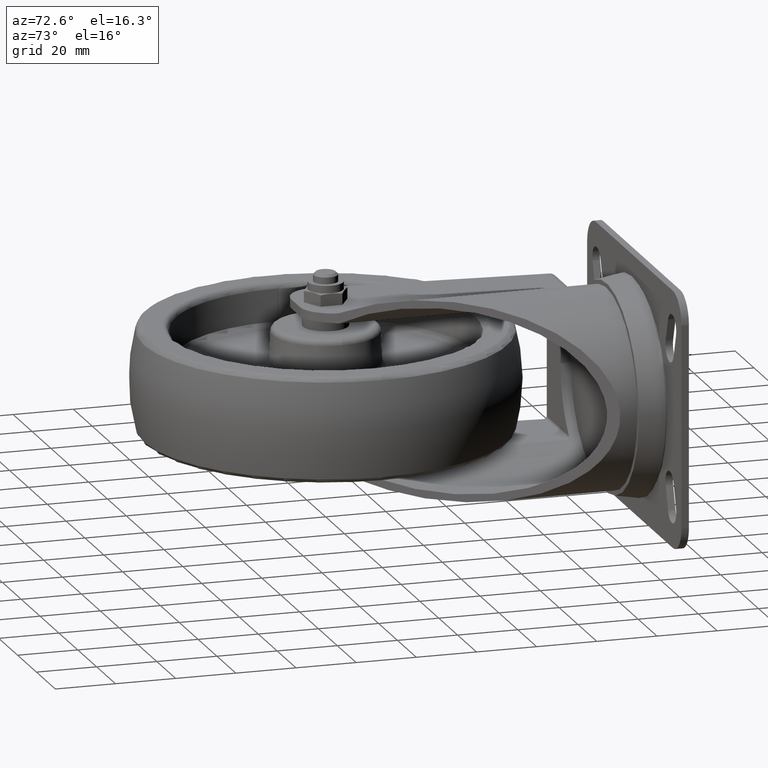
[diagram: clean part render]
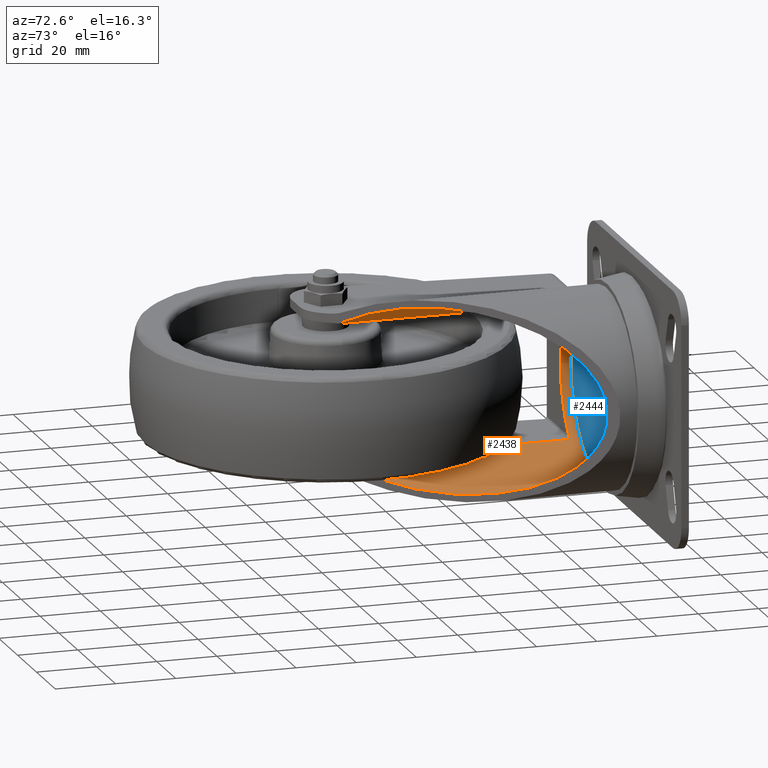
[diagram: same view with the hole feature highlighted: cylindrical wall and planar end face, labeled with their STEP entity ids]
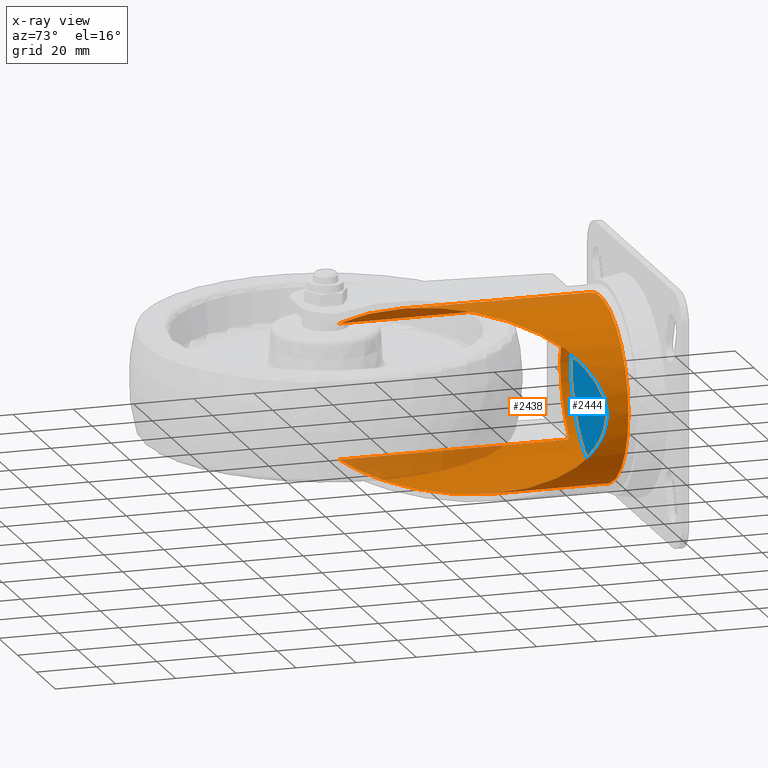
[diagram: x-ray of the same camera — body ghosted, the hole faces saturated]
A machine part, auxiliary view. The highlighted faces form one hole feature of diameter 61 mm: the cylindrical wall (entity #2438, orange) and its adjacent planar end face (entity #2444, blue) — they share a circular edge in the B-rep.
The next image is the same camera in x-ray (body ghosted, the hole faces saturated) — the bore reads through the body.
Wall:
#108=B_SPLINE_CURVE_WITH_KNOTS('',3,(#4002,#4003,#4004,#4005,#4006,#4007,
#4008,#4009,#4010,#4011,#4012,#4013),.UNSPECIFIED.,.F.,.F.,(4,2,2,2,2,4),
(0.180733820545579,0.236035838133543,0.291337855721506,0.328771485534597,
0.347488300441143,0.366205115347688),.UNSPECIFIED.);
#109=B_SPLINE_CURVE_WITH_KNOTS('',3,(#4031,#4032,#4033,#4034,#4035,#4036,
#4037,#4038,#4039,#4040,#4041,#4042),.UNSPECIFIED.,.F.,.F.,(4,2,2,2,2,4),
(0.,0.0187168149065458,0.0374336298130916,0.0748672596261831,0.130169277214146,
0.18547129480211),.UNSPECIFIED.);
#119=ELLIPSE('',#2676,53.2523324423824,30.5);
#130=CYLINDRICAL_SURFACE('',#2674,30.5);
#221=FACE_OUTER_BOUND('',#373,.T.);
#373=EDGE_LOOP('',(#1695,#1696,#1697,#1698,#1699,#1700,#1701,#1702,#1703,
#1704));
#531=CIRCLE('',#2614,30.5);
#532=CIRCLE('',#2615,30.5);
#572=CIRCLE('',#2675,30.5);
#686=LINE('',#3690,#815);
#703=LINE('',#4017,#832);
#720=LINE('',#4151,#849);
#815=VECTOR('',#2922,76.70179871917);
#832=VECTOR('',#2989,76.70179871917);
#849=VECTOR('',#3140,30.5);
#945=VERTEX_POINT('',#3678);
#950=VERTEX_POINT('',#3688);
#981=VERTEX_POINT('',#3999);
#982=VERTEX_POINT('',#4001);
#983=VERTEX_POINT('',#4016);
#989=VERTEX_POINT('',#4030);
#990=VERTEX_POINT('',#4046);
#1021=VERTEX_POINT('',#4149);
#1173=EDGE_CURVE('',#945,#950,#686,.T.);
#1214=EDGE_CURVE('',#981,#982,#108,.T.);
#1216=EDGE_CURVE('',#983,#982,#703,.T.);
#1223=EDGE_CURVE('',#945,#989,#109,.T.);
#1226=EDGE_CURVE('',#990,#989,#531,.T.);
#1227=EDGE_CURVE('',#981,#990,#532,.T.);
#1278=EDGE_CURVE('',#1021,#1021,#572,.T.);
#1279=EDGE_CURVE('',#1021,#990,#720,.T.);
#1280=EDGE_CURVE('',#983,#950,#119,.T.);
#1695=ORIENTED_EDGE('',*,*,#1278,.T.);
#1696=ORIENTED_EDGE('',*,*,#1279,.T.);
#1697=ORIENTED_EDGE('',*,*,#1226,.T.);
#1698=ORIENTED_EDGE('',*,*,#1223,.F.);
#1699=ORIENTED_EDGE('',*,*,#1173,.T.);
#1700=ORIENTED_EDGE('',*,*,#1280,.F.);
#1701=ORIENTED_EDGE('',*,*,#1216,.T.);
#1702=ORIENTED_EDGE('',*,*,#1214,.F.);
#1703=ORIENTED_EDGE('',*,*,#1227,.T.);
#1704=ORIENTED_EDGE('',*,*,#1279,.F.);
#2438=ADVANCED_FACE('',(#221),#130,.F.);
#2614=AXIS2_PLACEMENT_3D('',#4047,#3005,#3006);
#2615=AXIS2_PLACEMENT_3D('',#4048,#3007,#3008);
#2674=AXIS2_PLACEMENT_3D('',#4148,#3136,#3137);
#2675=AXIS2_PLACEMENT_3D('',#4150,#3138,#3139);
#2676=AXIS2_PLACEMENT_3D('',#4152,#3141,#3142);
#2922=DIRECTION('',(0.,-1.,0.));
#2989=DIRECTION('',(0.,1.,0.));
#3005=DIRECTION('center_axis',(0.,-1.,0.));
#3006=DIRECTION('ref_axis',(1.,0.,0.));
#3007=DIRECTION('center_axis',(0.,-1.,0.));
#3008=DIRECTION('ref_axis',(1.,0.,0.));
#3136=DIRECTION('center_axis',(0.,-1.,0.));
#3137=DIRECTION('ref_axis',(1.,0.,0.));
#3138=DIRECTION('center_axis',(0.,1.,0.));
#3139=DIRECTION('ref_axis',(1.,0.,0.));
#3140=DIRECTION('',(0.,-1.,0.));
#3141=DIRECTION('center_axis',(-0.819733687646226,0.572744865832876,0.));
#3142=DIRECTION('ref_axis',(0.572744865832876,0.819733687646226,-1.4027740036362E-16));
#3678=CARTESIAN_POINT('',(16.408739718026,75.,-22.5));
#3688=CARTESIAN_POINT('',(16.408739718026,-0.701798719170014,-22.5));
#3690=CARTESIAN_POINT('',(16.408739718026,76.,-22.5));
#3999=CARTESIAN_POINT('',(15.3666923472161,76.,21.5));
#4001=CARTESIAN_POINT('',(16.408739718026,75.,22.5));
#4002=CARTESIAN_POINT('Ctrl Pts',(15.3666923472161,76.,21.5));
#4003=CARTESIAN_POINT('Ctrl Pts',(15.4966369787069,76.,21.630750334459));
#4004=CARTESIAN_POINT('Ctrl Pts',(15.6386214325421,75.973229191605,21.7710172906661));
#4005=CARTESIAN_POINT('Ctrl Pts',(15.9099438789387,75.8576224835226,22.0339560900631));
#4006=CARTESIAN_POINT('Ctrl Pts',(16.0393188517808,75.7691111949694,22.1567323842964));
#4007=CARTESIAN_POINT('Ctrl Pts',(16.2164024202545,75.5776431042063,22.3226716134184));
#4008=CARTESIAN_POINT('Ctrl Pts',(16.285217218343,75.4785608094729,22.3864260363273));
#4009=CARTESIAN_POINT('Ctrl Pts',(16.3575248021116,75.3088616328052,22.4530463798996));
#4010=CARTESIAN_POINT('Ctrl Pts',(16.3766383205931,75.2488059238033,22.4705861465848));
#4011=CARTESIAN_POINT('Ctrl Pts',(16.4022456896135,75.1255696282329,22.4940621576902));
#4012=CARTESIAN_POINT('Ctrl Pts',(16.408739718026,75.0623893830218,22.5));
#4013=CARTESIAN_POINT('Ctrl Pts',(16.408739718026,75.,22.5));
#4016=CARTESIAN_POINT('',(16.408739718026,-0.701798719170029,22.5));
#4017=CARTESIAN_POINT('',(16.408739718026,-0.701798719170029,22.5));
#4030=CARTESIAN_POINT('',(15.3666923472161,76.,-21.5));
#4031=CARTESIAN_POINT('Ctrl Pts',(16.408739718026,75.,-22.5));
#4032=CARTESIAN_POINT('Ctrl Pts',(16.408739718026,75.0623893830218,-22.5));
#4033=CARTESIAN_POINT('Ctrl Pts',(16.4022456896135,75.1255696282329,-22.4940621576902));
#4034=CARTESIAN_POINT('Ctrl Pts',(16.3766383205931,75.2488059238033,-22.4705861465848));
#4035=CARTESIAN_POINT('Ctrl Pts',(16.3575248021116,75.3088616328052,-22.4530463798996));
#4036=CARTESIAN_POINT('Ctrl Pts',(16.285217218343,75.4785608094729,-22.3864260363273));
#4037=CARTESIAN_POINT('Ctrl Pts',(16.2164024202545,75.5776431042063,-22.3226716134184));
#4038=CARTESIAN_POINT('Ctrl Pts',(16.0393188517808,75.7691111949694,-22.1567323842964));
#4039=CARTESIAN_POINT('Ctrl Pts',(15.9099438789387,75.8576224835226,-22.0339560900631));
#4040=CARTESIAN_POINT('Ctrl Pts',(15.6386214325421,75.973229191605,-21.7710172906661));
#4041=CARTESIAN_POINT('Ctrl Pts',(15.4966369787069,76.,-21.630750334459));
#4042=CARTESIAN_POINT('Ctrl Pts',(15.3666923472161,76.,-21.5));
#4046=CARTESIAN_POINT('',(6.5,76.,-3.73517273739943E-15));
#4047=CARTESIAN_POINT('Origin',(37.,76.,0.));
#4048=CARTESIAN_POINT('Origin',(37.,76.,0.));
#4148=CARTESIAN_POINT('Origin',(37.,34.75,0.));
#4149=CARTESIAN_POINT('',(6.5,79.5,3.73504937915843E-15));
#4150=CARTESIAN_POINT('Origin',(37.,79.5,0.));
#4151=CARTESIAN_POINT('',(6.5,34.75,-3.73517273739943E-15));
#4152=CARTESIAN_POINT('Origin',(37.,28.7691764587221,0.));
End face:
#227=FACE_OUTER_BOUND('',#379,.T.);
#379=EDGE_LOOP('',(#1726));
#572=CIRCLE('',#2675,30.5);
#1021=VERTEX_POINT('',#4149);
#1278=EDGE_CURVE('',#1021,#1021,#572,.T.);
#1726=ORIENTED_EDGE('',*,*,#1278,.F.);
#2206=PLANE('',#2682);
#2444=ADVANCED_FACE('',(#227),#2206,.F.);
#2675=AXIS2_PLACEMENT_3D('',#4150,#3138,#3139);
#2682=AXIS2_PLACEMENT_3D('',#4164,#3159,#3160);
#3138=DIRECTION('center_axis',(0.,1.,0.));
#3139=DIRECTION('ref_axis',(1.,0.,0.));
#3159=DIRECTION('center_axis',(0.,1.,0.));
#3160=DIRECTION('ref_axis',(0.,0.,1.));
#4149=CARTESIAN_POINT('',(6.5,79.5,3.73504937915843E-15));
#4150=CARTESIAN_POINT('Origin',(37.,79.5,0.));
#4164=CARTESIAN_POINT('Origin',(52.25,79.5,-3.73504937915825E-15));